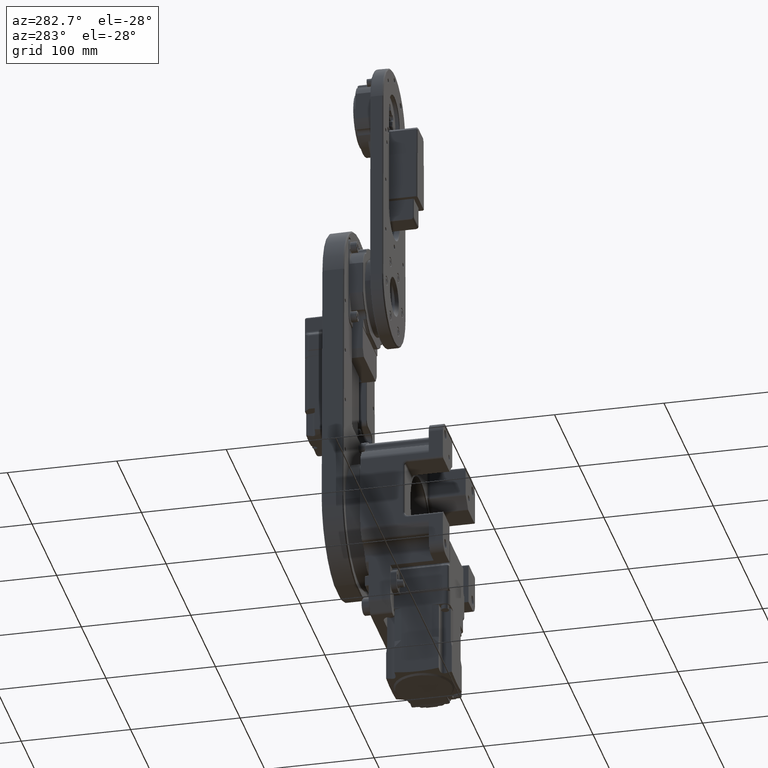
[diagram: clean part render]
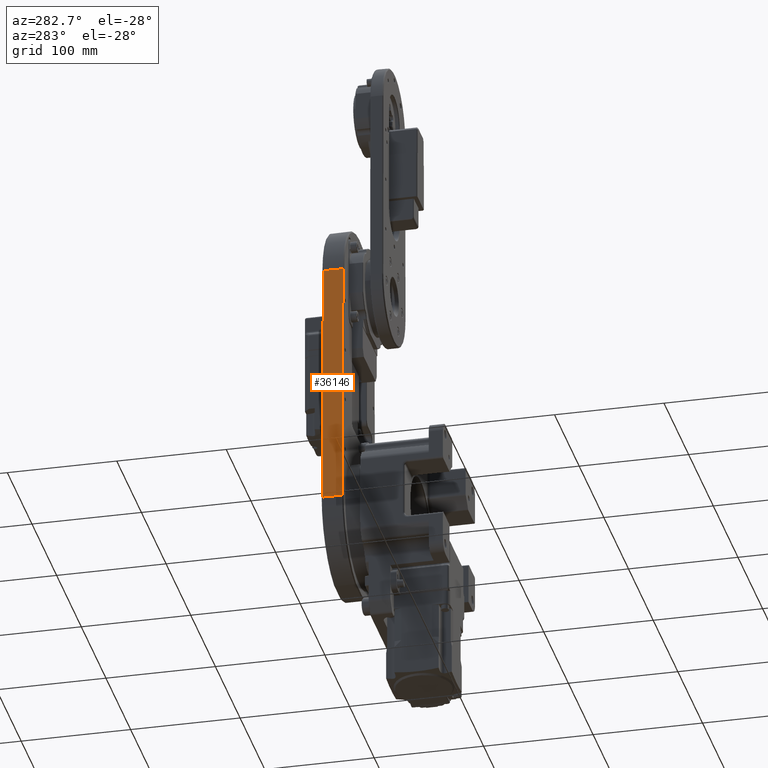
[diagram: same view with one face highlighted and labeled with its STEP entity id]
A machine part, auxiliary view. The second image highlights one B-rep face of the part: STEP entity #36146.
In plain terms, the highlighted planar face has unit normal (0.9999, -0, -0.013).
Its self-contained STEP definition (entity closure, byte-faithful):
#68 = DIRECTION ( 'NONE',  ( -0.01304236884378606742, -1.304598701039703463E-15, -0.9999149446902684257 ) ) ;
#3224 = VECTOR ( 'NONE', #56299, 1000.000000000000000 ) ;
#3278 = ORIENTED_EDGE ( 'NONE', *, *, #28718, .F. ) ;
#5104 = DIRECTION ( 'NONE',  ( 0.01304236884378606916, 1.304598701039703661E-15, 0.9999149446902685368 ) ) ;
#5174 = CARTESIAN_POINT ( 'NONE',  ( -61.99999999999239719, 111.0000000000007248, 230.0000000000000853 ) ) ;
#10495 = VERTEX_POINT ( 'NONE', #12297 ) ;
#12297 = CARTESIAN_POINT ( 'NONE',  ( -61.99999999999242561, 92.00000000000072475, 230.0000000000001137 ) ) ;
#15185 = LINE ( 'NONE', #65433, #53676 ) ;
#17219 = EDGE_CURVE ( 'NONE', #88327, #86649, #15185, .T. ) ;
#22375 = DIRECTION ( 'NONE',  ( 0.9999149446902684257, -1.445436246585898709E-15, -0.01304236884378606742 ) ) ;
#24220 = ORIENTED_EDGE ( 'NONE', *, *, #41559, .T. ) ;
#28094 = CARTESIAN_POINT ( 'NONE',  ( -64.99999999999238298, 111.0000000000004263, -2.183799230133030986E-14 ) ) ;
#28718 = EDGE_CURVE ( 'NONE', #88327, #10495, #76301, .T. ) ;
#32492 = ORIENTED_EDGE ( 'NONE', *, *, #57795, .T. ) ;
#34105 = DIRECTION ( 'NONE',  ( -1.428298247106164424E-15, -1.000000000000000000, 1.323339650661262444E-15 ) ) ;
#34961 = CARTESIAN_POINT ( 'NONE',  ( -64.99999999999241140, 92.00000000000042633, 3.305461061233679533E-15 ) ) ;
#36142 = PLANE ( 'NONE',  #60018 ) ;
#36146 = ADVANCED_FACE ( 'NONE', ( #64111 ), #36142, .F. ) ;
#36639 = VECTOR ( 'NONE', #34105, 1000.000000000000000 ) ;
#38138 = CARTESIAN_POINT ( 'NONE',  ( -64.99999999999238298, 110.0000000000004263, -2.051465265066904169E-14 ) ) ;
#41440 = CARTESIAN_POINT ( 'NONE',  ( -64.99999999999241140, 92.00000000000042633, 3.305461061233679533E-15 ) ) ;
#41559 = EDGE_CURVE ( 'NONE', #88621, #10495, #50104, .T. ) ;
#45890 = EDGE_LOOP ( 'NONE', ( #32492, #24220, #3278, #89777 ) ) ;
#49125 = CARTESIAN_POINT ( 'NONE',  ( -61.99999999999239719, 110.0000000000007248, 230.0000000000000853 ) ) ;
#50104 = LINE ( 'NONE', #34961, #62350 ) ;
#53676 = VECTOR ( 'NONE', #57839, 999.9999999999998863 ) ;
#56299 = DIRECTION ( 'NONE',  ( -1.428298247106164424E-15, -1.000000000000000000, 1.323339650661262444E-15 ) ) ;
#57795 = EDGE_CURVE ( 'NONE', #86649, #88621, #63412, .T. ) ;
#57839 = DIRECTION ( 'NONE',  ( -0.01304236884378606916, -1.304598701039703661E-15, -0.9999149446902685368 ) ) ;
#60018 = AXIS2_PLACEMENT_3D ( 'NONE', #28094, #22375, #68 ) ;
#62350 = VECTOR ( 'NONE', #5104, 999.9999999999998863 ) ;
#63412 = LINE ( 'NONE', #84299, #3224 ) ;
#64111 = FACE_OUTER_BOUND ( 'NONE', #45890, .T. ) ;
#65433 = CARTESIAN_POINT ( 'NONE',  ( -64.99999999999238298, 110.0000000000004263, -2.056902555037482064E-14 ) ) ;
#76301 = LINE ( 'NONE', #5174, #36639 ) ;
#84299 = CARTESIAN_POINT ( 'NONE',  ( -64.99999999999238298, 111.0000000000004263, -2.183799230133030986E-14 ) ) ;
#86649 = VERTEX_POINT ( 'NONE', #38138 ) ;
#88327 = VERTEX_POINT ( 'NONE', #49125 ) ;
#88621 = VERTEX_POINT ( 'NONE', #41440 ) ;
#89777 = ORIENTED_EDGE ( 'NONE', *, *, #17219, .T. ) ;